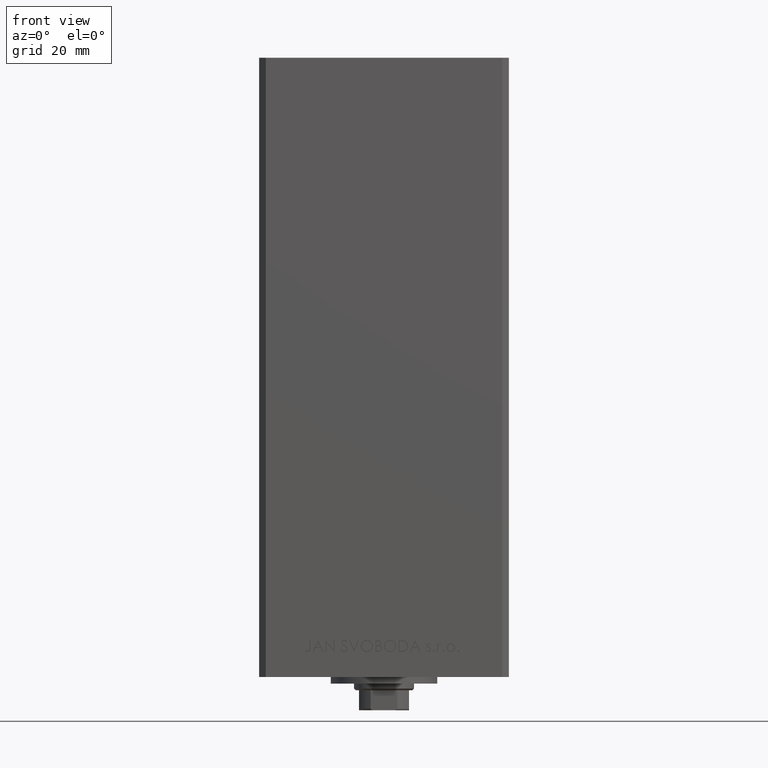
[diagram: clean part render]
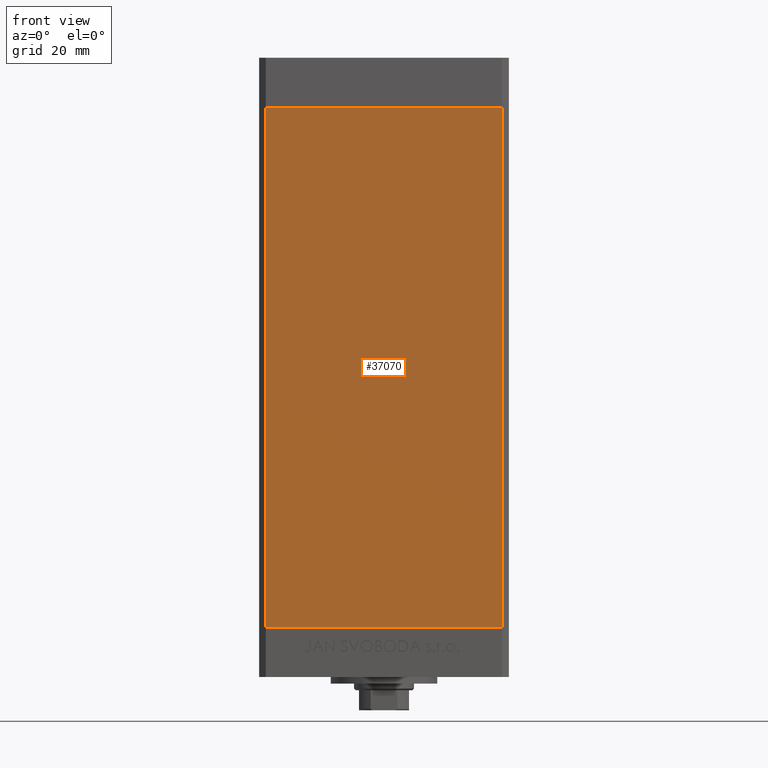
[diagram: same view with one face highlighted and labeled with its STEP entity id]
A machine part, front view. The second image highlights one B-rep face of the part: STEP entity #37070.
In plain terms, the highlighted planar face has unit normal (0, 1, 0).
Its self-contained STEP definition (entity closure, byte-faithful):
#803 = VERTEX_POINT ( 'NONE', #40183 ) ;
#4203 = VERTEX_POINT ( 'NONE', #43820 ) ;
#4249 = EDGE_CURVE ( 'NONE', #803, #4503, #34748, .T. ) ;
#4430 = CARTESIAN_POINT ( 'NONE',  ( 35.49999999999999289, -32.50000000000000000, 0.000000000000000000 ) ) ;
#4503 = VERTEX_POINT ( 'NONE', #33969 ) ;
#5674 = CARTESIAN_POINT ( 'NONE',  ( 35.49999999999999289, -32.50000000000000000, 156.0000000000000000 ) ) ;
#7248 = VECTOR ( 'NONE', #46331, 1000.000000000000000 ) ;
#9190 = EDGE_CURVE ( 'NONE', #4203, #40910, #31101, .T. ) ;
#9251 = DIRECTION ( 'NONE',  ( 1.000000000000000000, 0.000000000000000000, 0.000000000000000000 ) ) ;
#10453 = PLANE ( 'NONE',  #16381 ) ;
#10932 = DIRECTION ( 'NONE',  ( -0.000000000000000000, -0.000000000000000000, -1.000000000000000000 ) ) ;
#13452 = CARTESIAN_POINT ( 'NONE',  ( -35.49999999999999289, -32.50000000000000000, 156.0000000000000000 ) ) ;
#13517 = VECTOR ( 'NONE', #10932, 1000.000000000000000 ) ;
#13707 = LINE ( 'NONE', #40128, #36518 ) ;
#13930 = EDGE_LOOP ( 'NONE', ( #43121, #37209, #44338, #23531 ) ) ;
#14663 = CARTESIAN_POINT ( 'NONE',  ( -35.49999999999999289, -32.50000000000000000, 156.0000000000000000 ) ) ;
#16381 = AXIS2_PLACEMENT_3D ( 'NONE', #13452, #32856, #47852 ) ;
#23531 = ORIENTED_EDGE ( 'NONE', *, *, #4249, .T. ) ;
#26697 = VECTOR ( 'NONE', #30721, 1000.000000000000000 ) ;
#27415 = FACE_OUTER_BOUND ( 'NONE', #13930, .T. ) ;
#30721 = DIRECTION ( 'NONE',  ( 1.000000000000000000, 0.000000000000000000, 0.000000000000000000 ) ) ;
#31101 = LINE ( 'NONE', #5674, #7248 ) ;
#32856 = DIRECTION ( 'NONE',  ( 0.000000000000000000, 1.000000000000000000, 0.000000000000000000 ) ) ;
#33258 = CARTESIAN_POINT ( 'NONE',  ( -35.49999999999999289, -32.50000000000000000, 0.000000000000000000 ) ) ;
#33969 = CARTESIAN_POINT ( 'NONE',  ( -35.49999999999999289, -32.50000000000000000, 0.000000000000000000 ) ) ;
#34748 = LINE ( 'NONE', #14663, #13517 ) ;
#35318 = EDGE_CURVE ( 'NONE', #4503, #40910, #39779, .T. ) ;
#36518 = VECTOR ( 'NONE', #9251, 1000.000000000000000 ) ;
#37070 = ADVANCED_FACE ( 'NONE', ( #27415 ), #10453, .F. ) ;
#37209 = ORIENTED_EDGE ( 'NONE', *, *, #9190, .F. ) ;
#39779 = LINE ( 'NONE', #33258, #26697 ) ;
#40128 = CARTESIAN_POINT ( 'NONE',  ( -35.49999999999999289, -32.50000000000000000, 156.0000000000000000 ) ) ;
#40183 = CARTESIAN_POINT ( 'NONE',  ( -35.49999999999999289, -32.50000000000000000, 156.0000000000000000 ) ) ;
#40910 = VERTEX_POINT ( 'NONE', #4430 ) ;
#43121 = ORIENTED_EDGE ( 'NONE', *, *, #35318, .T. ) ;
#43820 = CARTESIAN_POINT ( 'NONE',  ( 35.49999999999999289, -32.50000000000000000, 156.0000000000000000 ) ) ;
#44338 = ORIENTED_EDGE ( 'NONE', *, *, #46002, .F. ) ;
#46002 = EDGE_CURVE ( 'NONE', #803, #4203, #13707, .T. ) ;
#46331 = DIRECTION ( 'NONE',  ( -0.000000000000000000, -0.000000000000000000, -1.000000000000000000 ) ) ;
#47852 = DIRECTION ( 'NONE',  ( 0.000000000000000000, -0.000000000000000000, 1.000000000000000000 ) ) ;